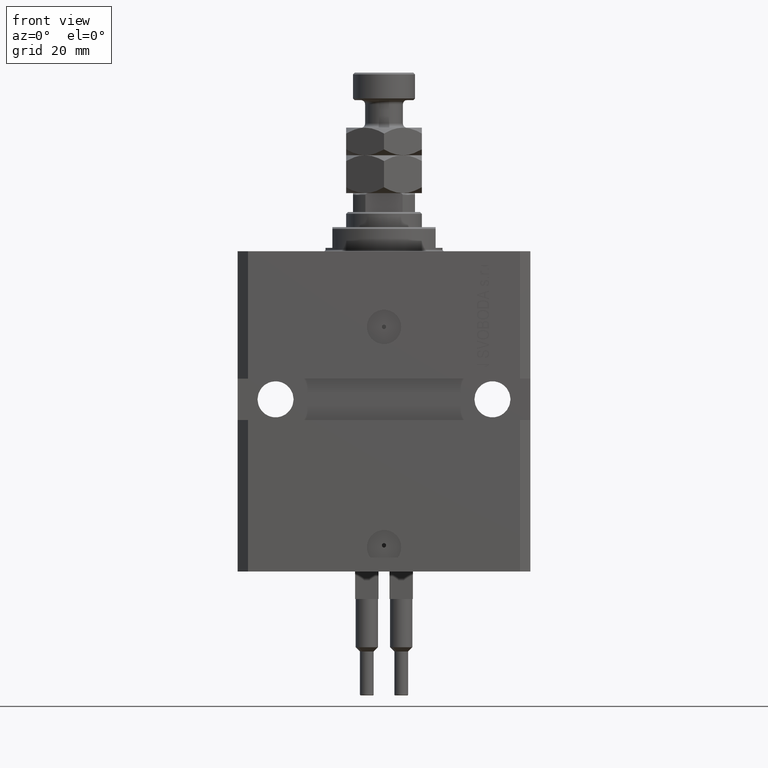
[diagram: clean part render]
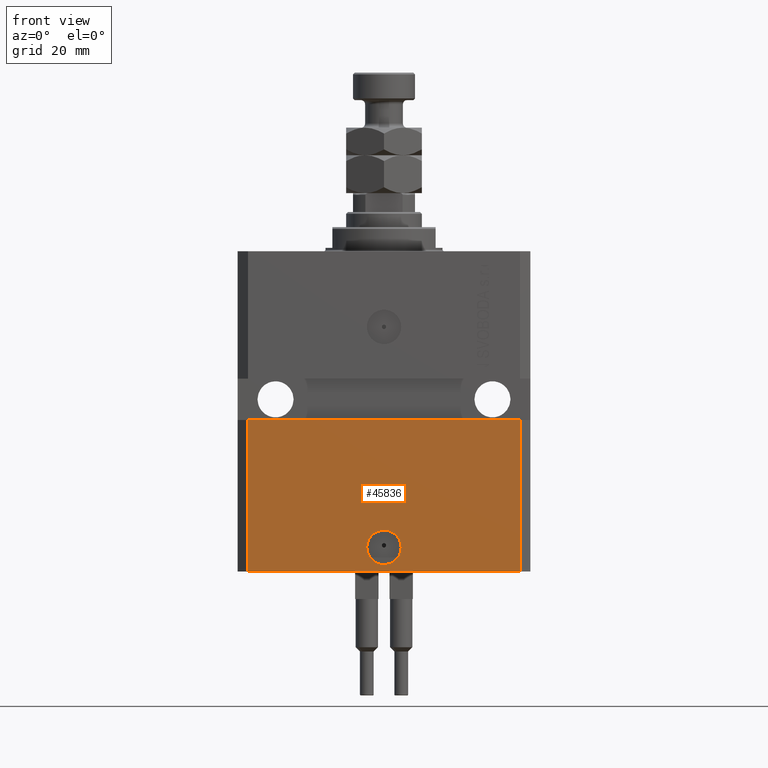
[diagram: same view with one face highlighted and labeled with its STEP entity id]
A machine part, front view. The second image highlights one B-rep face of the part: STEP entity #45836.
In plain terms, the highlighted planar face has unit normal (0, -1, 0).
Its self-contained STEP definition (entity closure, byte-faithful):
#716 = VECTOR ( 'NONE', #4868, 1000.000000000000000 ) ;
#751 = VERTEX_POINT ( 'NONE', #29528 ) ;
#1379 = ORIENTED_EDGE ( 'NONE', *, *, #21181, .F. ) ;
#2183 = VECTOR ( 'NONE', #9361, 1000.000000000000000 ) ;
#2245 = CARTESIAN_POINT ( 'NONE',  ( -42.50000000000000000, -31.50000000000000711, -48.99999999999999289 ) ) ;
#4868 = DIRECTION ( 'NONE',  ( 0.000000000000000000, 0.000000000000000000, 1.000000000000000000 ) ) ;
#6210 = EDGE_CURVE ( 'NONE', #29591, #46700, #34703, .T. ) ;
#7936 = LINE ( 'NONE', #24134, #716 ) ;
#9361 = DIRECTION ( 'NONE',  ( 1.000000000000000000, 1.632680918566406300E-16, 0.000000000000000000 ) ) ;
#10067 = DIRECTION ( 'NONE',  ( 0.000000000000000000, 0.000000000000000000, 1.000000000000000000 ) ) ;
#10145 = ORIENTED_EDGE ( 'NONE', *, *, #6210, .F. ) ;
#10205 = CARTESIAN_POINT ( 'NONE',  ( -5.000000000000006217, -31.50000000000000000, -86.00000000000000000 ) ) ;
#11177 = CARTESIAN_POINT ( 'NONE',  ( 0.000000000000000000, -31.50000000000000000, -86.00000000000000000 ) ) ;
#11632 = CIRCLE ( 'NONE', #18072, 5.000000000000006217 ) ;
#11767 = EDGE_LOOP ( 'NONE', ( #24402, #1379, #16726, #27163 ) ) ;
#14227 = DIRECTION ( 'NONE',  ( 0.000000000000000000, -1.000000000000000000, 0.000000000000000000 ) ) ;
#16726 = ORIENTED_EDGE ( 'NONE', *, *, #19589, .T. ) ;
#17106 = EDGE_CURVE ( 'NONE', #46700, #29591, #11632, .T. ) ;
#17723 = CARTESIAN_POINT ( 'NONE',  ( -39.50000000000000000, -31.50000000000000711, -48.99999999999999289 ) ) ;
#18072 = AXIS2_PLACEMENT_3D ( 'NONE', #31747, #19827, #36040 ) ;
#18149 = LINE ( 'NONE', #41713, #48867 ) ;
#19508 = DIRECTION ( 'NONE',  ( 1.000000000000000000, 0.000000000000000000, 0.000000000000000000 ) ) ;
#19589 = EDGE_CURVE ( 'NONE', #42801, #751, #49103, .T. ) ;
#19827 = DIRECTION ( 'NONE',  ( 1.176083712526788232E-16, -1.000000000000000000, 0.000000000000000000 ) ) ;
#21181 = EDGE_CURVE ( 'NONE', #42801, #30406, #18149, .T. ) ;
#22089 = VECTOR ( 'NONE', #23021, 1000.000000000000000 ) ;
#23021 = DIRECTION ( 'NONE',  ( 1.000000000000000000, 0.000000000000000000, 0.000000000000000000 ) ) ;
#24134 = CARTESIAN_POINT ( 'NONE',  ( 39.50000000000000711, -31.50000000000000000, -93.00000000000000000 ) ) ;
#24402 = ORIENTED_EDGE ( 'NONE', *, *, #28418, .F. ) ;
#26184 = VERTEX_POINT ( 'NONE', #30189 ) ;
#27163 = ORIENTED_EDGE ( 'NONE', *, *, #41500, .T. ) ;
#27356 = ORIENTED_EDGE ( 'NONE', *, *, #17106, .F. ) ;
#28418 = EDGE_CURVE ( 'NONE', #30406, #26184, #36465, .T. ) ;
#29528 = CARTESIAN_POINT ( 'NONE',  ( 39.50000000000000711, -31.50000000000000000, -93.00000000000000000 ) ) ;
#29591 = VERTEX_POINT ( 'NONE', #30594 ) ;
#29940 = FACE_BOUND ( 'NONE', #41110, .T. ) ;
#30189 = CARTESIAN_POINT ( 'NONE',  ( 39.50000000000001421, -31.49999999999999289, -48.99999999999999289 ) ) ;
#30192 = CARTESIAN_POINT ( 'NONE',  ( -39.50000000000000711, -31.50000000000000000, -93.00000000000000000 ) ) ;
#30406 = VERTEX_POINT ( 'NONE', #17723 ) ;
#30594 = CARTESIAN_POINT ( 'NONE',  ( 5.000000000000006217, -31.50000000000000000, -86.00000000000000000 ) ) ;
#31747 = CARTESIAN_POINT ( 'NONE',  ( 0.000000000000000000, -31.50000000000000000, -86.00000000000000000 ) ) ;
#33231 = DIRECTION ( 'NONE',  ( 0.000000000000000000, -0.000000000000000000, -1.000000000000000000 ) ) ;
#34185 = CARTESIAN_POINT ( 'NONE',  ( -39.50000000000000711, -31.50000000000000000, -93.00000000000000000 ) ) ;
#34703 = CIRCLE ( 'NONE', #47618, 5.000000000000006217 ) ;
#36040 = DIRECTION ( 'NONE',  ( 1.000000000000000000, 0.000000000000000000, 0.000000000000000000 ) ) ;
#36465 = LINE ( 'NONE', #2245, #2183 ) ;
#41110 = EDGE_LOOP ( 'NONE', ( #10145, #27356 ) ) ;
#41500 = EDGE_CURVE ( 'NONE', #751, #26184, #7936, .T. ) ;
#41581 = FACE_OUTER_BOUND ( 'NONE', #11767, .T. ) ;
#41713 = CARTESIAN_POINT ( 'NONE',  ( -39.50000000000000711, -31.50000000000000000, -93.00000000000000000 ) ) ;
#42062 = DIRECTION ( 'NONE',  ( 1.176083712526788232E-16, -1.000000000000000000, 0.000000000000000000 ) ) ;
#42801 = VERTEX_POINT ( 'NONE', #44325 ) ;
#43749 = AXIS2_PLACEMENT_3D ( 'NONE', #30192, #14227, #33231 ) ;
#44325 = CARTESIAN_POINT ( 'NONE',  ( -39.50000000000000711, -31.50000000000000000, -93.00000000000000000 ) ) ;
#44621 = PLANE ( 'NONE',  #43749 ) ;
#45836 = ADVANCED_FACE ( 'NONE', ( #29940, #41581 ), #44621, .T. ) ;
#46700 = VERTEX_POINT ( 'NONE', #10205 ) ;
#47618 = AXIS2_PLACEMENT_3D ( 'NONE', #11177, #42062, #19508 ) ;
#48867 = VECTOR ( 'NONE', #10067, 1000.000000000000000 ) ;
#49103 = LINE ( 'NONE', #34185, #22089 ) ;